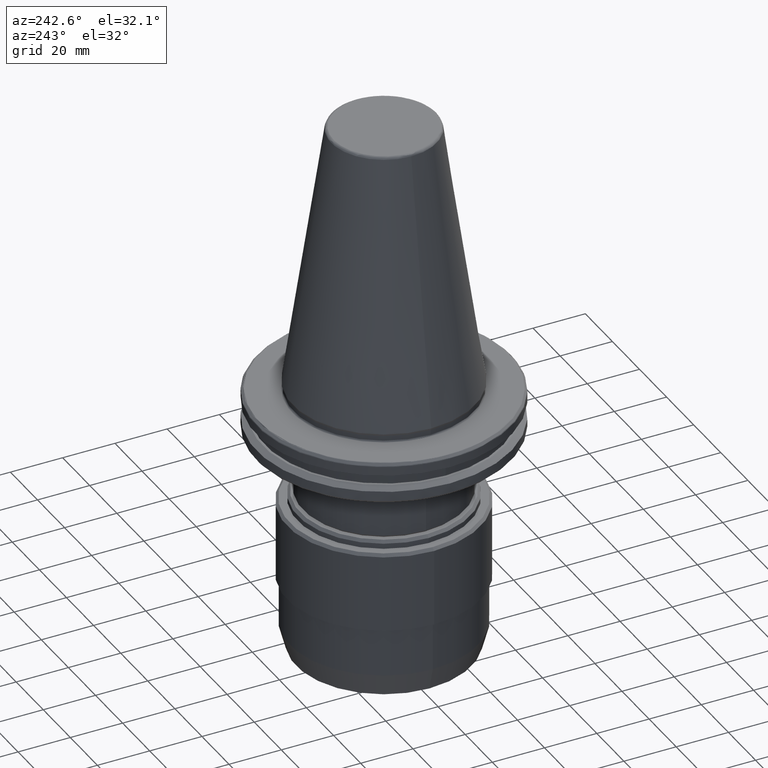
[diagram: clean part render]
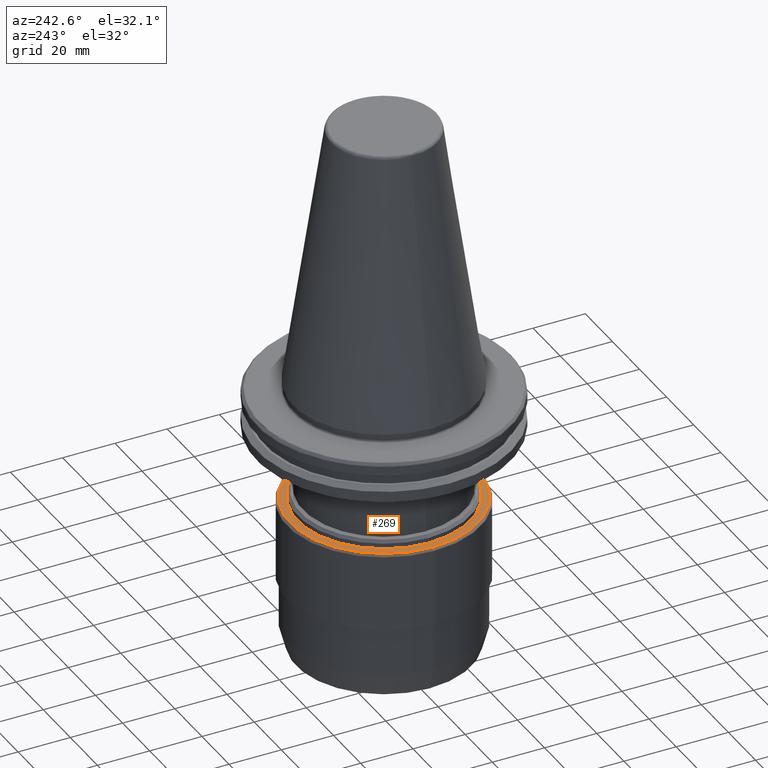
[diagram: same view with one face highlighted and labeled with its STEP entity id]
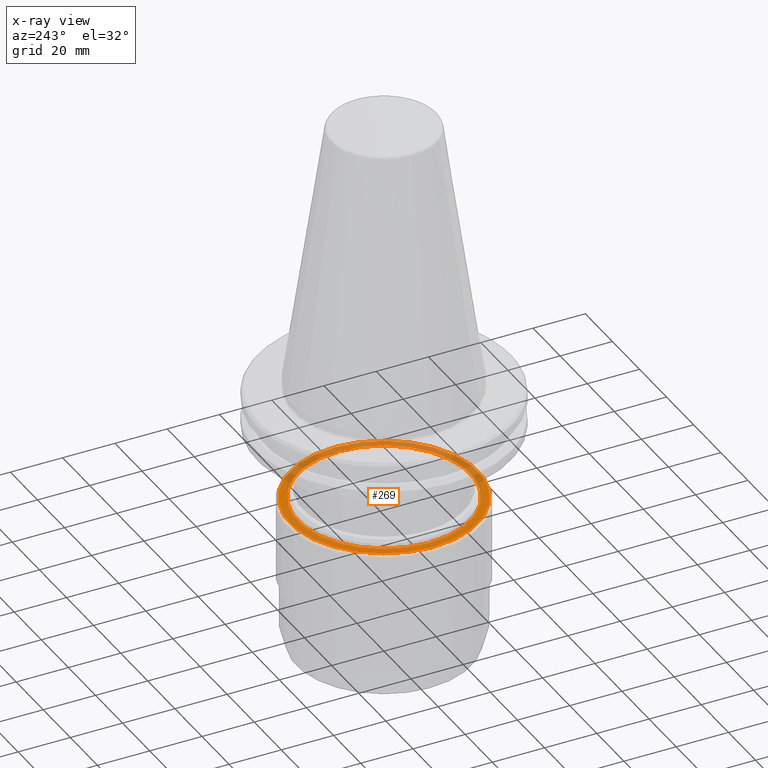
[diagram: x-ray of the same camera — body ghosted, the highlighted face saturated]
A machine part, auxiliary view. The second image highlights one B-rep face of the part: STEP entity #269.
The next image is the same camera in x-ray: the body ghosted, the highlighted face saturated — about 41% of this face is hidden behind the body in this view.
In plain terms, the highlighted planar face has unit normal (0, 0, 1).
Its self-contained STEP definition (entity closure, byte-faithful):
#69 = EDGE_CURVE ( 'NONE', #3109, #1251, #1914, .T. ) ;
#184 = EDGE_CURVE ( 'NONE', #1742, #2479, #3391, .T. ) ;
#244 = ORIENTED_EDGE ( 'NONE', *, *, #184, .T. ) ;
#269 = ADVANCED_FACE ( 'NONE', ( #1909, #2439 ), #907, .T. ) ;
#489 = CARTESIAN_POINT ( 'NONE',  ( -36.00000000000000700, 0.0000000000000000000, -47.00000000000001400 ) ) ;
#681 = CARTESIAN_POINT ( 'NONE',  ( 0.0000000000000000000, -33.00000000000000000, -47.00000000000001400 ) ) ;
#770 = CIRCLE ( 'NONE', #2927, 33.00000000000000000 ) ;
#907 = PLANE ( 'NONE',  #2181 ) ;
#1057 = CARTESIAN_POINT ( 'NONE',  ( -33.00000000000000000, 4.041334437186266200E-015, -47.00000000000000700 ) ) ;
#1228 = ORIENTED_EDGE ( 'NONE', *, *, #2055, .T. ) ;
#1251 = VERTEX_POINT ( 'NONE', #1057 ) ;
#1480 = DIRECTION ( 'NONE',  ( 1.000000000000000000, 0.0000000000000000000, -0.0000000000000000000 ) ) ;
#1609 = DIRECTION ( 'NONE',  ( 0.0000000000000000000, 0.0000000000000000000, 1.000000000000000000 ) ) ;
#1621 = EDGE_LOOP ( 'NONE', ( #2427, #3416 ) ) ;
#1622 = DIRECTION ( 'NONE',  ( 1.000000000000000000, 0.0000000000000000000, 0.0000000000000000000 ) ) ;
#1742 = VERTEX_POINT ( 'NONE', #3386 ) ;
#1844 = DIRECTION ( 'NONE',  ( -1.000000000000000000, 0.0000000000000000000, 0.0000000000000000000 ) ) ;
#1891 = DIRECTION ( 'NONE',  ( 0.0000000000000000000, 0.0000000000000000000, 1.000000000000000000 ) ) ;
#1909 = FACE_BOUND ( 'NONE', #1621, .T. ) ;
#1914 = CIRCLE ( 'NONE', #2322, 33.00000000000000000 ) ;
#2055 = EDGE_CURVE ( 'NONE', #2479, #1742, #3061, .T. ) ;
#2130 = DIRECTION ( 'NONE',  ( -0.0000000000000000000, -0.0000000000000000000, 1.000000000000000000 ) ) ;
#2150 = EDGE_CURVE ( 'NONE', #1251, #3109, #770, .T. ) ;
#2181 = AXIS2_PLACEMENT_3D ( 'NONE', #681, #1609, #1480 ) ;
#2255 = DIRECTION ( 'NONE',  ( 1.000000000000000000, 0.0000000000000000000, 0.0000000000000000000 ) ) ;
#2259 = DIRECTION ( 'NONE',  ( 0.0000000000000000000, 0.0000000000000000000, 1.000000000000000000 ) ) ;
#2267 = CARTESIAN_POINT ( 'NONE',  ( 0.0000000000000000000, 0.0000000000000000000, -47.00000000000000700 ) ) ;
#2322 = AXIS2_PLACEMENT_3D ( 'NONE', #2441, #1891, #1622 ) ;
#2427 = ORIENTED_EDGE ( 'NONE', *, *, #69, .F. ) ;
#2439 = FACE_OUTER_BOUND ( 'NONE', #2648, .T. ) ;
#2441 = CARTESIAN_POINT ( 'NONE',  ( 0.0000000000000000000, 0.0000000000000000000, -47.00000000000000700 ) ) ;
#2472 = DIRECTION ( 'NONE',  ( -1.000000000000000000, 0.0000000000000000000, 0.0000000000000000000 ) ) ;
#2479 = VERTEX_POINT ( 'NONE', #489 ) ;
#2483 = DIRECTION ( 'NONE',  ( -0.0000000000000000000, -0.0000000000000000000, 1.000000000000000000 ) ) ;
#2487 = CARTESIAN_POINT ( 'NONE',  ( 0.0000000000000000000, 0.0000000000000000000, -47.00000000000001400 ) ) ;
#2598 = CARTESIAN_POINT ( 'NONE',  ( 33.00000000000000000, 0.0000000000000000000, -47.00000000000000700 ) ) ;
#2648 = EDGE_LOOP ( 'NONE', ( #1228, #244 ) ) ;
#2740 = AXIS2_PLACEMENT_3D ( 'NONE', #3303, #2130, #1844 ) ;
#2927 = AXIS2_PLACEMENT_3D ( 'NONE', #2267, #2259, #2255 ) ;
#3061 = CIRCLE ( 'NONE', #3331, 36.00000000000000700 ) ;
#3109 = VERTEX_POINT ( 'NONE', #2598 ) ;
#3303 = CARTESIAN_POINT ( 'NONE',  ( 0.0000000000000000000, 0.0000000000000000000, -47.00000000000001400 ) ) ;
#3331 = AXIS2_PLACEMENT_3D ( 'NONE', #2487, #2483, #2472 ) ;
#3386 = CARTESIAN_POINT ( 'NONE',  ( 36.00000000000000700, 4.469960816887840000E-015, -47.00000000000001400 ) ) ;
#3391 = CIRCLE ( 'NONE', #2740, 36.00000000000000700 ) ;
#3416 = ORIENTED_EDGE ( 'NONE', *, *, #2150, .F. ) ;